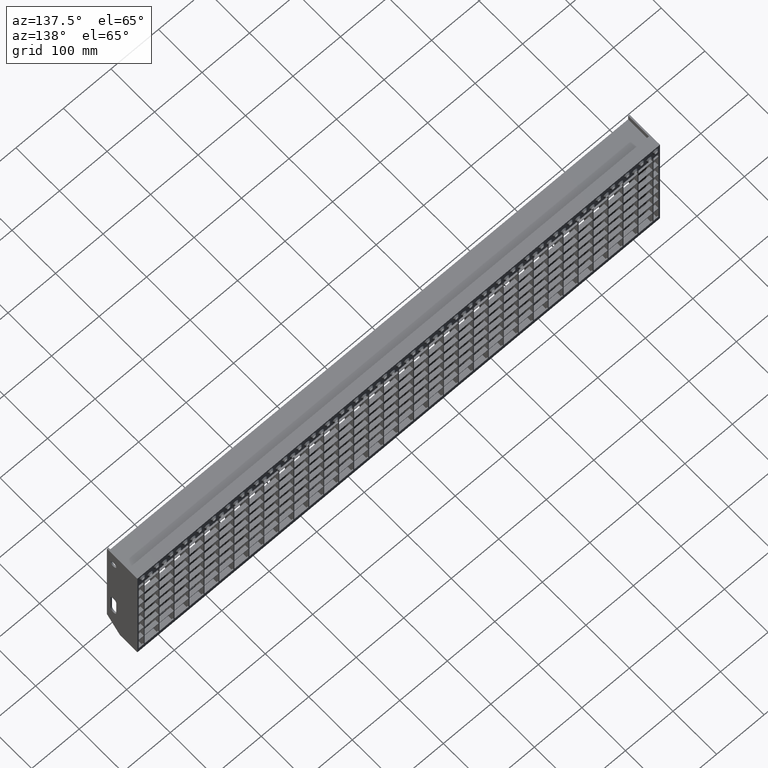
[diagram: clean part render]
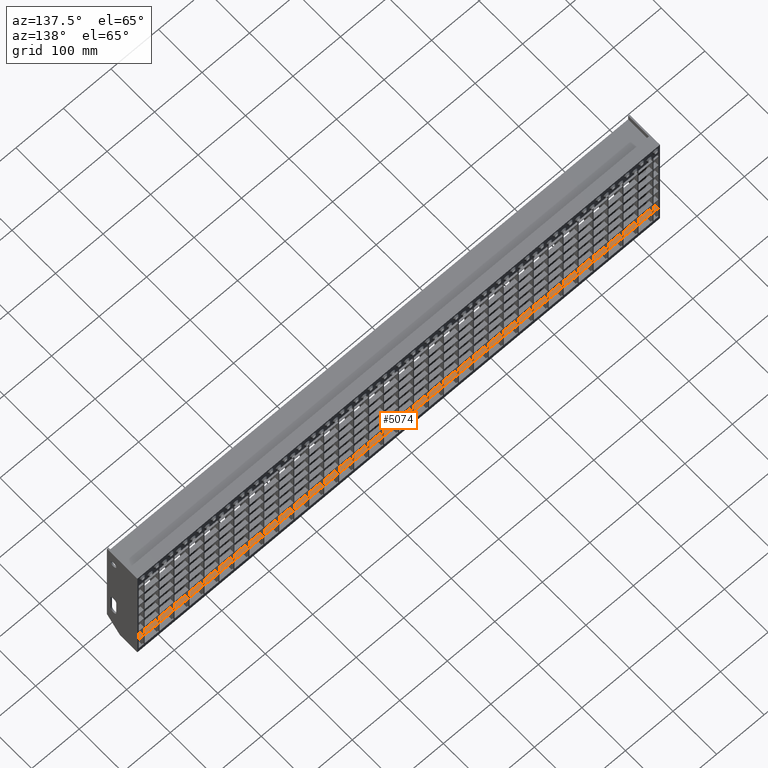
[diagram: same view with one face highlighted and labeled with its STEP entity id]
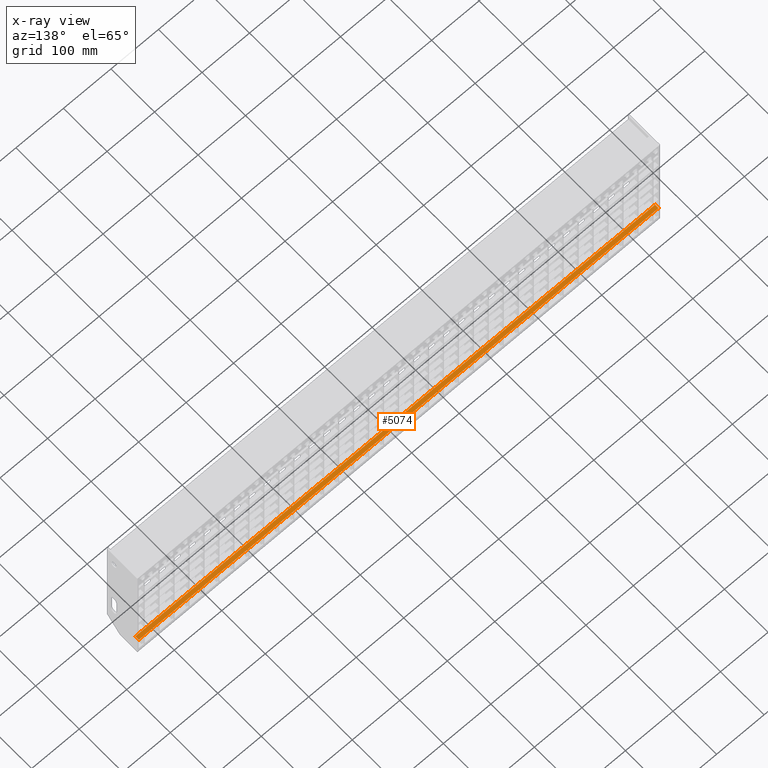
[diagram: x-ray of the same camera — body ghosted, the highlighted face saturated]
A machine part, auxiliary view. The second image highlights one B-rep face of the part: STEP entity #5074.
The next image is the same camera in x-ray: the body ghosted, the highlighted face saturated — about 0% of this face is hidden behind the body in this view.
In plain terms, the highlighted planar face has unit normal (0, 0, -1).
Its self-contained STEP definition (entity closure, byte-faithful):
#921 = VECTOR ( 'NONE', #30043, 1000.000000000000000 ) ;
#1103 = VERTEX_POINT ( 'NONE', #12983 ) ;
#1847 = CARTESIAN_POINT ( 'NONE',  ( 555.1394102980499400, 62.00000000000000700, -228.7500000000000000 ) ) ;
#2353 = LINE ( 'NONE', #3781, #29250 ) ;
#3280 = CARTESIAN_POINT ( 'NONE',  ( 547.0000000000000000, 62.00000000000000700, -228.7500000000000000 ) ) ;
#3307 = EDGE_CURVE ( 'NONE', #1103, #32408, #33522, .T. ) ;
#3742 = DIRECTION ( 'NONE',  ( 0.0000000000000000000, 1.000000000000000000, 0.0000000000000000000 ) ) ;
#3781 = CARTESIAN_POINT ( 'NONE',  ( 555.1394102980499400, 62.00000000000000700, -228.7500000000000000 ) ) ;
#5029 = DIRECTION ( 'NONE',  ( -1.000000000000000000, 0.0000000000000000000, -0.0000000000000000000 ) ) ;
#5074 = ADVANCED_FACE ( 'NONE', ( #7414 ), #18105, .F. ) ;
#5272 = EDGE_CURVE ( 'NONE', #7678, #1103, #2353, .T. ) ;
#7141 = ORIENTED_EDGE ( 'NONE', *, *, #19371, .T. ) ;
#7381 = DIRECTION ( 'NONE',  ( 0.0000000000000000000, 0.0000000000000000000, -1.000000000000000000 ) ) ;
#7414 = FACE_OUTER_BOUND ( 'NONE', #30411, .T. ) ;
#7678 = VERTEX_POINT ( 'NONE', #32772 ) ;
#8946 = ORIENTED_EDGE ( 'NONE', *, *, #10546, .T. ) ;
#9282 = DIRECTION ( 'NONE',  ( -1.000000000000000000, -0.0000000000000000000, -0.0000000000000000000 ) ) ;
#10218 = ORIENTED_EDGE ( 'NONE', *, *, #5272, .F. ) ;
#10546 = EDGE_CURVE ( 'NONE', #7678, #17003, #19897, .T. ) ;
#11834 = LINE ( 'NONE', #33439, #12274 ) ;
#12274 = VECTOR ( 'NONE', #9282, 1000.000000000000000 ) ;
#12983 = CARTESIAN_POINT ( 'NONE',  ( -547.0000000000000000, 62.00000000000000700, -228.7500000000000000 ) ) ;
#15486 = CARTESIAN_POINT ( 'NONE',  ( -547.0000000000000000, 70.00000000000000000, -228.7500000000000000 ) ) ;
#17003 = VERTEX_POINT ( 'NONE', #32855 ) ;
#18105 = PLANE ( 'NONE',  #30059 ) ;
#19371 = EDGE_CURVE ( 'NONE', #17003, #32408, #11834, .T. ) ;
#19522 = CARTESIAN_POINT ( 'NONE',  ( -547.0000000000000000, 62.00000000000000700, -228.7500000000000000 ) ) ;
#19897 = LINE ( 'NONE', #3280, #921 ) ;
#22711 = DIRECTION ( 'NONE',  ( -1.000000000000000000, -0.0000000000000000000, -0.0000000000000000000 ) ) ;
#27012 = ORIENTED_EDGE ( 'NONE', *, *, #3307, .F. ) ;
#27249 = VECTOR ( 'NONE', #3742, 1000.000000000000000 ) ;
#29250 = VECTOR ( 'NONE', #22711, 1000.000000000000000 ) ;
#30043 = DIRECTION ( 'NONE',  ( 0.0000000000000000000, 1.000000000000000000, 0.0000000000000000000 ) ) ;
#30059 = AXIS2_PLACEMENT_3D ( 'NONE', #1847, #7381, #5029 ) ;
#30411 = EDGE_LOOP ( 'NONE', ( #10218, #8946, #7141, #27012 ) ) ;
#32408 = VERTEX_POINT ( 'NONE', #15486 ) ;
#32772 = CARTESIAN_POINT ( 'NONE',  ( 547.0000000000000000, 62.00000000000000700, -228.7500000000000000 ) ) ;
#32855 = CARTESIAN_POINT ( 'NONE',  ( 547.0000000000000000, 70.00000000000000000, -228.7500000000000000 ) ) ;
#33439 = CARTESIAN_POINT ( 'NONE',  ( 555.1394102980499400, 70.00000000000000000, -228.7500000000000000 ) ) ;
#33522 = LINE ( 'NONE', #19522, #27249 ) ;